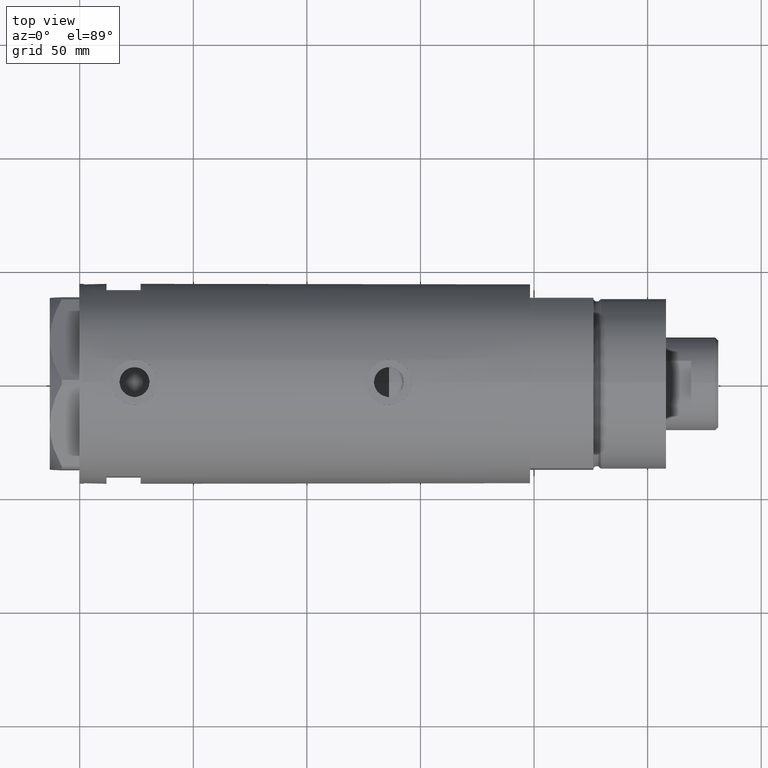
[diagram: clean part render]
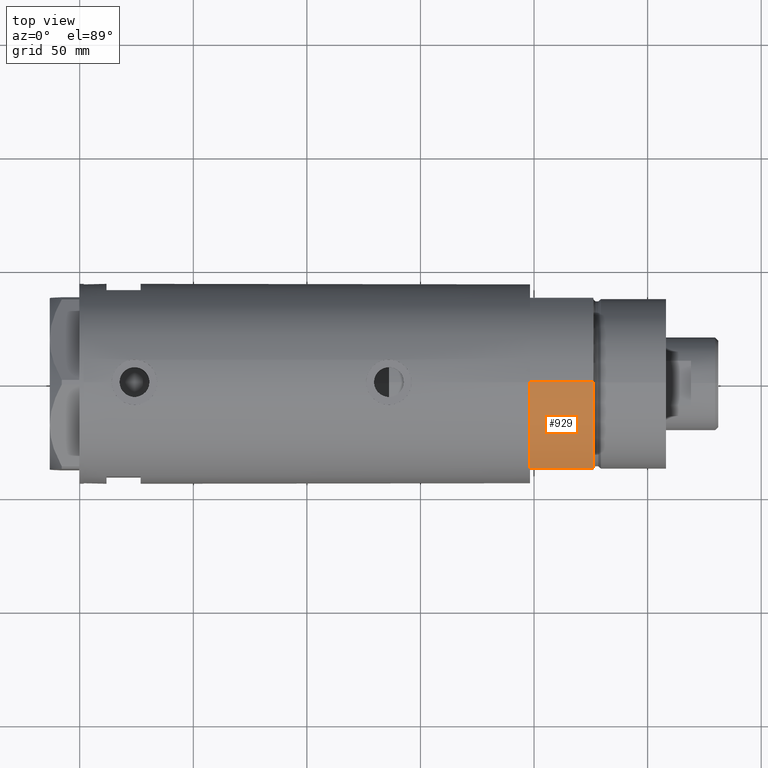
[diagram: same view with one face highlighted and labeled with its STEP entity id]
A machine part, top view. The second image highlights one B-rep face of the part: STEP entity #929.
In plain terms, the highlighted cylindrical surface (partial cylindrical patch) has radius 44 mm, axis along (-1, -0, 0).
Its self-contained STEP definition (entity closure, byte-faithful):
#109 = DIRECTION ( 'NONE',  ( -0.000000000000000000, -0.000000000000000000, 1.000000000000000000 ) ) ;
#298 = DIRECTION ( 'NONE',  ( -0.000000000000000000, -0.000000000000000000, -1.000000000000000000 ) ) ;
#497 = EDGE_LOOP ( 'NONE', ( #1131, #2145, #3052, #1597 ) ) ;
#638 = DIRECTION ( 'NONE',  ( -1.000000000000000000, 0.000000000000000000, 0.000000000000000000 ) ) ;
#720 = CIRCLE ( 'NONE', #4218, 44.00000000000000000 ) ;
#929 = ADVANCED_FACE ( 'NONE', ( #3161 ), #3411, .T. ) ;
#1109 = LINE ( 'NONE', #3975, #1506 ) ;
#1131 = ORIENTED_EDGE ( 'NONE', *, *, #2008, .F. ) ;
#1139 = AXIS2_PLACEMENT_3D ( 'NONE', #1411, #4183, #638 ) ;
#1364 = EDGE_CURVE ( 'NONE', #2997, #2390, #1109, .T. ) ;
#1375 = AXIS2_PLACEMENT_3D ( 'NONE', #2869, #2540, #1835 ) ;
#1411 = CARTESIAN_POINT ( 'NONE',  ( 0.000000000000000000, 0.000000000000000000, 27.89999999999999858 ) ) ;
#1506 = VECTOR ( 'NONE', #109, 1000.000000000000000 ) ;
#1597 = ORIENTED_EDGE ( 'NONE', *, *, #1364, .T. ) ;
#1835 = DIRECTION ( 'NONE',  ( 1.000000000000000000, 0.000000000000000000, 0.000000000000000000 ) ) ;
#2008 = EDGE_CURVE ( 'NONE', #4133, #2390, #3419, .T. ) ;
#2054 = CARTESIAN_POINT ( 'NONE',  ( -44.00000000000000000, 0.000000000000000000, 27.89999999999999858 ) ) ;
#2145 = ORIENTED_EDGE ( 'NONE', *, *, #4240, .T. ) ;
#2390 = VERTEX_POINT ( 'NONE', #2815 ) ;
#2535 = CARTESIAN_POINT ( 'NONE',  ( -23.01629857296780557, -37.50000000000000000, 0.000000000000000000 ) ) ;
#2540 = DIRECTION ( 'NONE',  ( 0.000000000000000000, 0.000000000000000000, 1.000000000000000000 ) ) ;
#2705 = CARTESIAN_POINT ( 'NONE',  ( -44.00000000000000000, 0.000000000000000000, 0.000000000000000000 ) ) ;
#2746 = DIRECTION ( 'NONE',  ( 0.000000000000000000, 0.000000000000000000, 1.000000000000000000 ) ) ;
#2815 = CARTESIAN_POINT ( 'NONE',  ( -23.01629857296780557, -37.50000000000000000, 27.89999999999999858 ) ) ;
#2856 = VECTOR ( 'NONE', #298, 1000.000000000000000 ) ;
#2869 = CARTESIAN_POINT ( 'NONE',  ( 0.000000000000000000, 0.000000000000000000, 27.89999999999999858 ) ) ;
#2997 = VERTEX_POINT ( 'NONE', #2535 ) ;
#3052 = ORIENTED_EDGE ( 'NONE', *, *, #3831, .T. ) ;
#3061 = CARTESIAN_POINT ( 'NONE',  ( -44.00000000000000000, 0.000000000000000000, 27.89999999999999858 ) ) ;
#3109 = CARTESIAN_POINT ( 'NONE',  ( 0.000000000000000000, 0.000000000000000000, 0.000000000000000000 ) ) ;
#3161 = FACE_OUTER_BOUND ( 'NONE', #497, .T. ) ;
#3181 = VERTEX_POINT ( 'NONE', #2705 ) ;
#3411 = CYLINDRICAL_SURFACE ( 'NONE', #1139, 44.00000000000000000 ) ;
#3419 = CIRCLE ( 'NONE', #1375, 44.00000000000000000 ) ;
#3797 = LINE ( 'NONE', #2054, #2856 ) ;
#3831 = EDGE_CURVE ( 'NONE', #3181, #2997, #720, .T. ) ;
#3975 = CARTESIAN_POINT ( 'NONE',  ( -23.01629857296780557, -37.50000000000000000, 0.000000000000000000 ) ) ;
#4114 = DIRECTION ( 'NONE',  ( 1.000000000000000000, 0.000000000000000000, 0.000000000000000000 ) ) ;
#4133 = VERTEX_POINT ( 'NONE', #3061 ) ;
#4183 = DIRECTION ( 'NONE',  ( -0.000000000000000000, -0.000000000000000000, -1.000000000000000000 ) ) ;
#4218 = AXIS2_PLACEMENT_3D ( 'NONE', #3109, #2746, #4114 ) ;
#4240 = EDGE_CURVE ( 'NONE', #4133, #3181, #3797, .T. ) ;